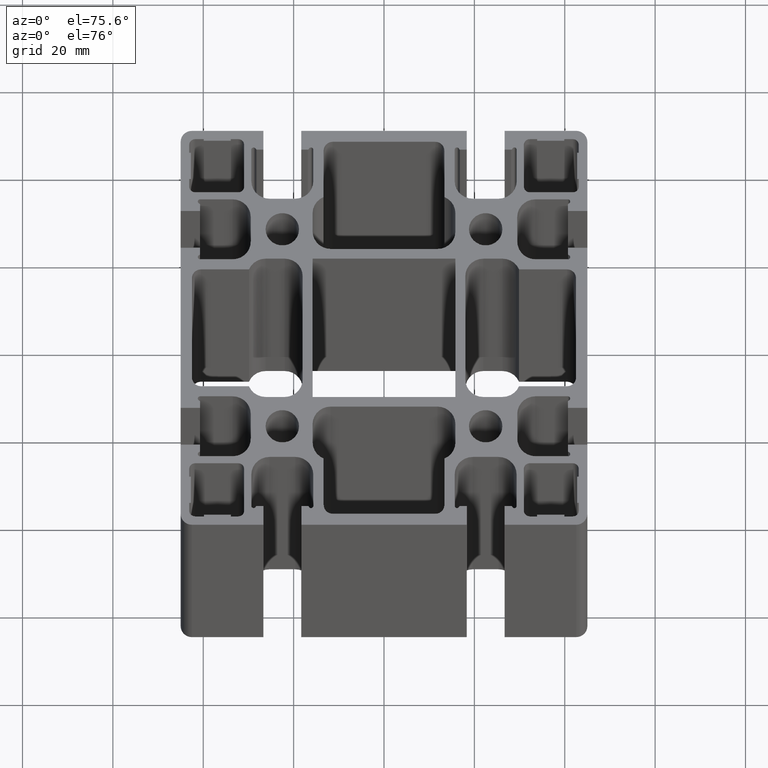
[diagram: clean part render]
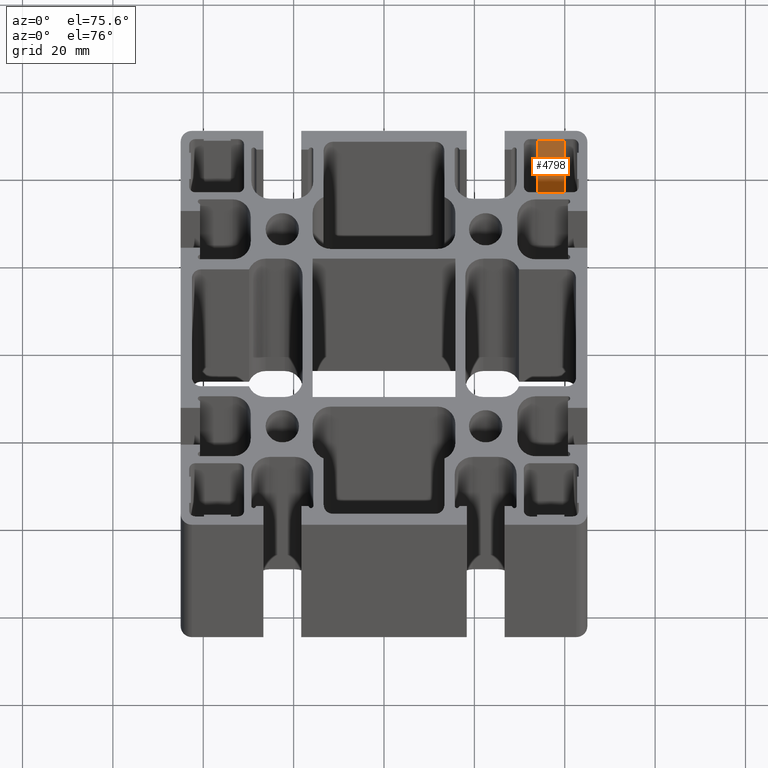
[diagram: same view with one face highlighted and labeled with its STEP entity id]
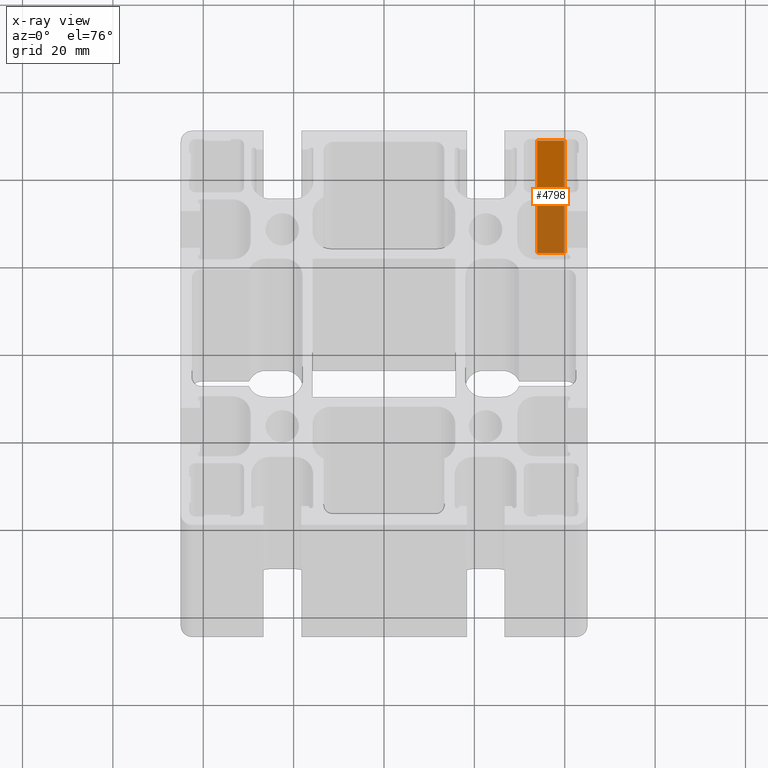
[diagram: x-ray of the same camera — body ghosted, the highlighted face saturated]
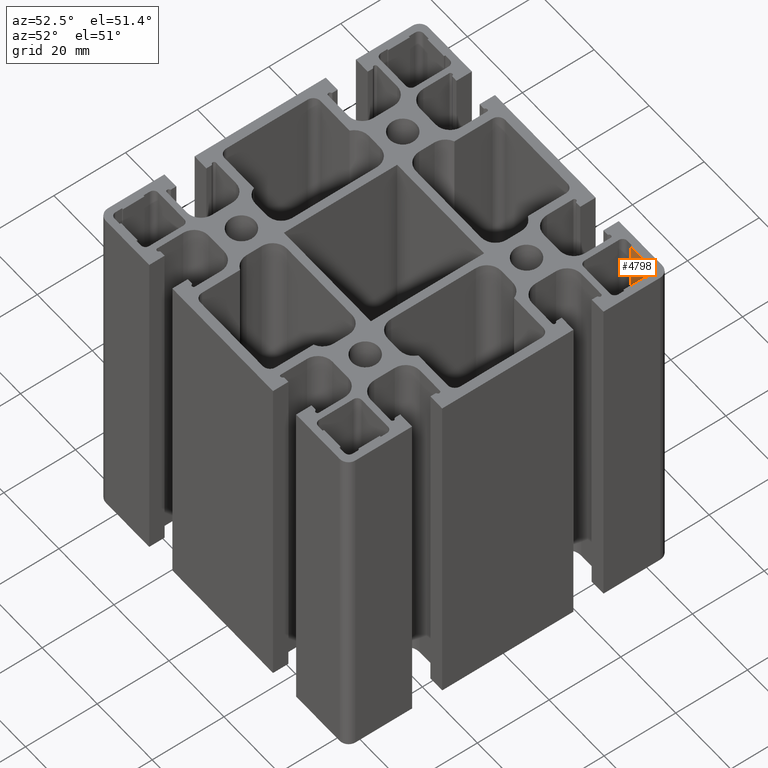
[diagram: same view with one face highlighted and labeled with its STEP entity id]
A machine part, auxiliary view. The second image highlights one B-rep face of the part: STEP entity #4798.
The next image is the same camera in x-ray: the body ghosted, the highlighted face saturated — about 54% of this face is hidden behind the body in this view.
A second angle (auxiliary view) of the same face is appended — the face is thin or edge-on in the first view.
In plain terms, the highlighted planar face has unit normal (0, 1, 0).
Its self-contained STEP definition (entity closure, byte-faithful):
#88=PLANE('',#5097);
#263=FACE_OUTER_BOUND('',#508,.T.);
#508=EDGE_LOOP('',(#3459,#3460,#3461,#3462));
#869=LINE('',#7239,#1402);
#870=LINE('',#7242,#1403);
#871=LINE('',#7244,#1404);
#872=LINE('',#7245,#1405);
#1402=VECTOR('',#5812,100.);
#1403=VECTOR('',#5815,6.);
#1404=VECTOR('',#5816,6.);
#1405=VECTOR('',#5817,100.);
#2110=VERTEX_POINT('',#7235);
#2111=VERTEX_POINT('',#7237);
#2112=VERTEX_POINT('',#7241);
#2113=VERTEX_POINT('',#7243);
#2665=EDGE_CURVE('',#2111,#2110,#869,.T.);
#2666=EDGE_CURVE('',#2110,#2112,#870,.T.);
#2667=EDGE_CURVE('',#2113,#2111,#871,.T.);
#2668=EDGE_CURVE('',#2113,#2112,#872,.T.);
#3459=ORIENTED_EDGE('',*,*,#2666,.F.);
#3460=ORIENTED_EDGE('',*,*,#2665,.F.);
#3461=ORIENTED_EDGE('',*,*,#2667,.F.);
#3462=ORIENTED_EDGE('',*,*,#2668,.T.);
#4798=ADVANCED_FACE('',(#263),#88,.F.);
#5097=AXIS2_PLACEMENT_3D('',#7240,#5813,#5814);
#5812=DIRECTION('',(0.,0.,1.));
#5813=DIRECTION('center_axis',(0.,1.,0.));
#5814=DIRECTION('ref_axis',(-1.,0.,0.));
#5815=DIRECTION('',(1.,0.,0.));
#5816=DIRECTION('',(-1.,0.,0.));
#5817=DIRECTION('',(0.,0.,1.));
#7235=CARTESIAN_POINT('',(33.900266666667,42.75,100.));
#7237=CARTESIAN_POINT('',(33.900266666667,42.75,0.));
#7239=CARTESIAN_POINT('',(33.900266666667,42.75,0.));
#7240=CARTESIAN_POINT('Origin',(39.900266666667,42.75,0.));
#7241=CARTESIAN_POINT('',(39.900266666667,42.75,100.));
#7242=CARTESIAN_POINT('',(19.9501333333335,42.75,100.));
#7243=CARTESIAN_POINT('',(39.900266666667,42.75,0.));
#7244=CARTESIAN_POINT('',(19.9501333333335,42.75,0.));
#7245=CARTESIAN_POINT('',(39.900266666667,42.75,0.));